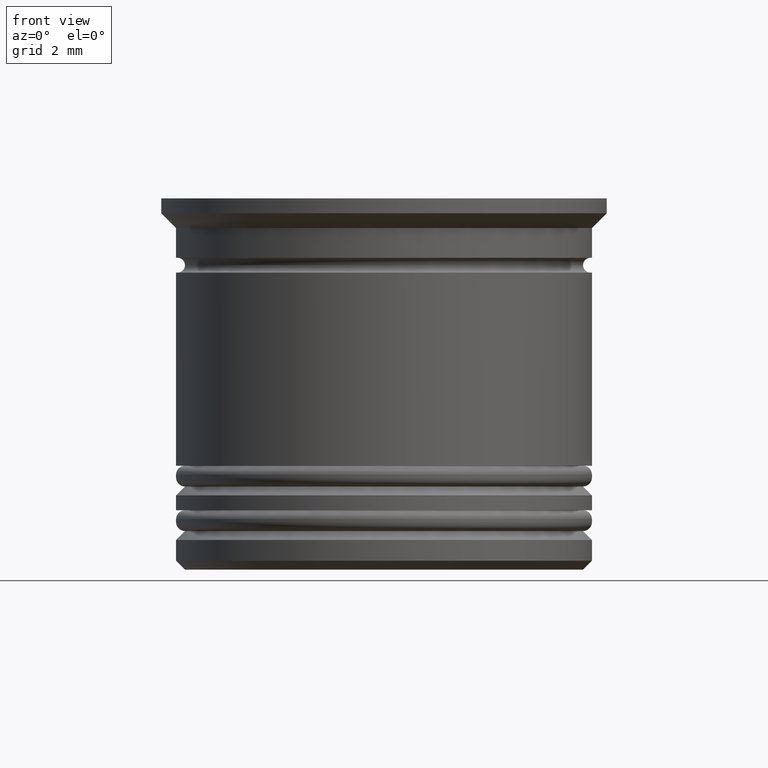
[diagram: clean part render]
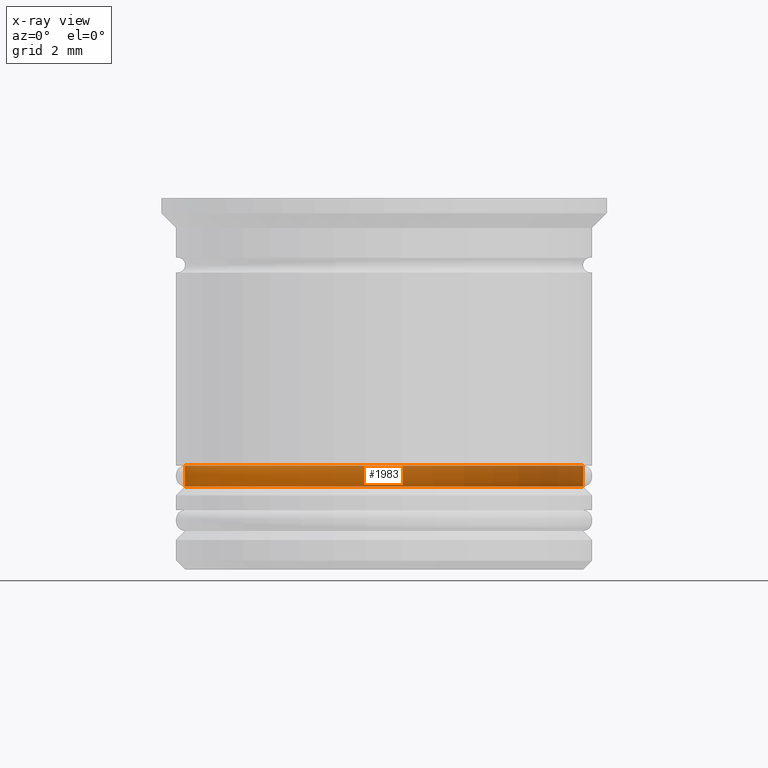
[diagram: x-ray — body ghosted, one internal face saturated and labeled with its STEP entity id]
A machine part, front view, then the same camera in x-ray: the body is ghosted and one INTERNAL B-rep face — a face not visible from any outside direction — is saturated and labeled: STEP entity #1983.
In plain terms, the highlighted cylindrical surface (partial cylindrical patch) has radius 6.7 mm, axis along (-0, -0, 1).
Its self-contained STEP definition (entity closure, byte-faithful):
#24 = CARTESIAN_POINT ( 'NONE',  ( 6.700000000000001066, 0.000000000000000000, -9.700000000000008171 ) ) ;
#29 = DIRECTION ( 'NONE',  ( 1.000000000000000000, 0.000000000000000000, 0.000000000000000000 ) ) ;
#45 = VECTOR ( 'NONE', #987, 1000.000000000000000 ) ;
#48 = VERTEX_POINT ( 'NONE', #1595 ) ;
#71 = CARTESIAN_POINT ( 'NONE',  ( 6.700000000000001066, 0.000000000000000000, -9.000000000000001776 ) ) ;
#103 = VERTEX_POINT ( 'NONE', #71 ) ;
#260 = EDGE_LOOP ( 'NONE', ( #813, #841, #1146, #1260 ) ) ;
#302 = FACE_OUTER_BOUND ( 'NONE', #260, .T. ) ;
#352 = LINE ( 'NONE', #1862, #512 ) ;
#452 = AXIS2_PLACEMENT_3D ( 'NONE', #557, #1303, #761 ) ;
#477 = DIRECTION ( 'NONE',  ( -0.000000000000000000, -0.000000000000000000, 1.000000000000000000 ) ) ;
#512 = VECTOR ( 'NONE', #477, 1000.000000000000000 ) ;
#557 = CARTESIAN_POINT ( 'NONE',  ( 0.000000000000000000, 0.000000000000000000, -9.700000000000008171 ) ) ;
#614 = CARTESIAN_POINT ( 'NONE',  ( 0.000000000000000000, 0.000000000000000000, 0.000000000000000000 ) ) ;
#633 = DIRECTION ( 'NONE',  ( -0.000000000000000000, -0.000000000000000000, 1.000000000000000000 ) ) ;
#678 = LINE ( 'NONE', #1470, #45 ) ;
#695 = EDGE_CURVE ( 'NONE', #704, #103, #352, .T. ) ;
#704 = VERTEX_POINT ( 'NONE', #24 ) ;
#761 = DIRECTION ( 'NONE',  ( -1.000000000000000000, 0.000000000000000000, 0.000000000000000000 ) ) ;
#813 = ORIENTED_EDGE ( 'NONE', *, *, #1254, .T. ) ;
#841 = ORIENTED_EDGE ( 'NONE', *, *, #1722, .T. ) ;
#912 = CIRCLE ( 'NONE', #1424, 6.700000000000001066 ) ;
#987 = DIRECTION ( 'NONE',  ( -0.000000000000000000, -0.000000000000000000, 1.000000000000000000 ) ) ;
#1108 = EDGE_CURVE ( 'NONE', #103, #1392, #912, .T. ) ;
#1146 = ORIENTED_EDGE ( 'NONE', *, *, #1108, .F. ) ;
#1254 = EDGE_CURVE ( 'NONE', #704, #48, #1325, .T. ) ;
#1260 = ORIENTED_EDGE ( 'NONE', *, *, #695, .F. ) ;
#1303 = DIRECTION ( 'NONE',  ( -0.000000000000000000, -0.000000000000000000, 1.000000000000000000 ) ) ;
#1325 = CIRCLE ( 'NONE', #452, 6.700000000000001066 ) ;
#1392 = VERTEX_POINT ( 'NONE', #1957 ) ;
#1404 = CYLINDRICAL_SURFACE ( 'NONE', #1781, 6.700000000000001066 ) ;
#1424 = AXIS2_PLACEMENT_3D ( 'NONE', #1553, #633, #1730 ) ;
#1470 = CARTESIAN_POINT ( 'NONE',  ( -6.700000000000001066, 8.205133554287267548E-16, 0.000000000000000000 ) ) ;
#1552 = DIRECTION ( 'NONE',  ( -0.000000000000000000, -0.000000000000000000, 1.000000000000000000 ) ) ;
#1553 = CARTESIAN_POINT ( 'NONE',  ( 0.000000000000000000, 0.000000000000000000, -9.000000000000001776 ) ) ;
#1595 = CARTESIAN_POINT ( 'NONE',  ( -6.700000000000001066, 8.205133554287267548E-16, -9.700000000000008171 ) ) ;
#1722 = EDGE_CURVE ( 'NONE', #48, #1392, #678, .T. ) ;
#1730 = DIRECTION ( 'NONE',  ( 1.000000000000000000, 0.000000000000000000, 0.000000000000000000 ) ) ;
#1781 = AXIS2_PLACEMENT_3D ( 'NONE', #614, #1552, #29 ) ;
#1862 = CARTESIAN_POINT ( 'NONE',  ( 6.700000000000001066, 0.000000000000000000, 0.000000000000000000 ) ) ;
#1957 = CARTESIAN_POINT ( 'NONE',  ( -6.700000000000001066, 8.205133554287267548E-16, -9.000000000000001776 ) ) ;
#1983 = ADVANCED_FACE ( 'NONE', ( #302 ), #1404, .T. ) ;